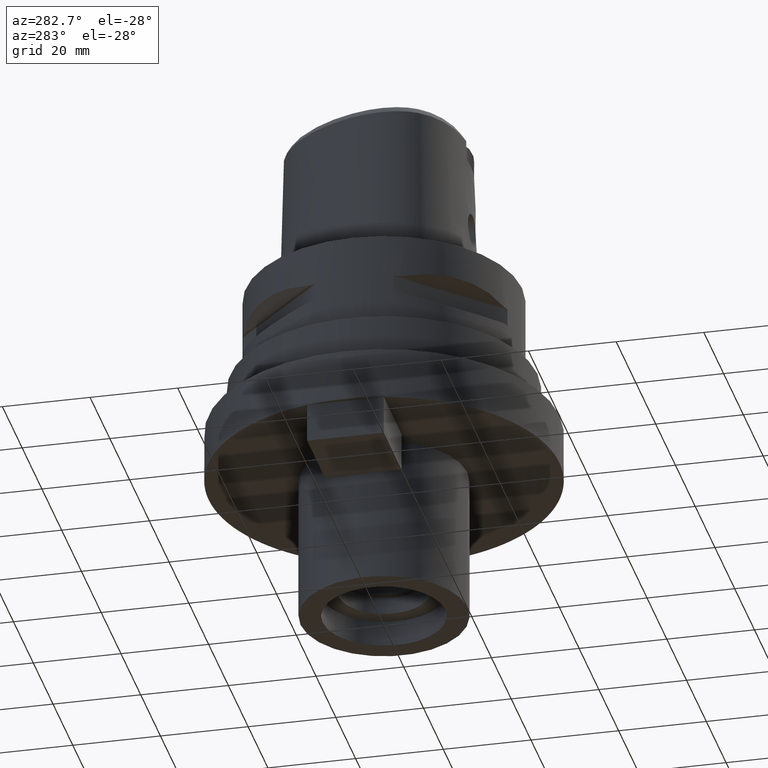
[diagram: clean part render]
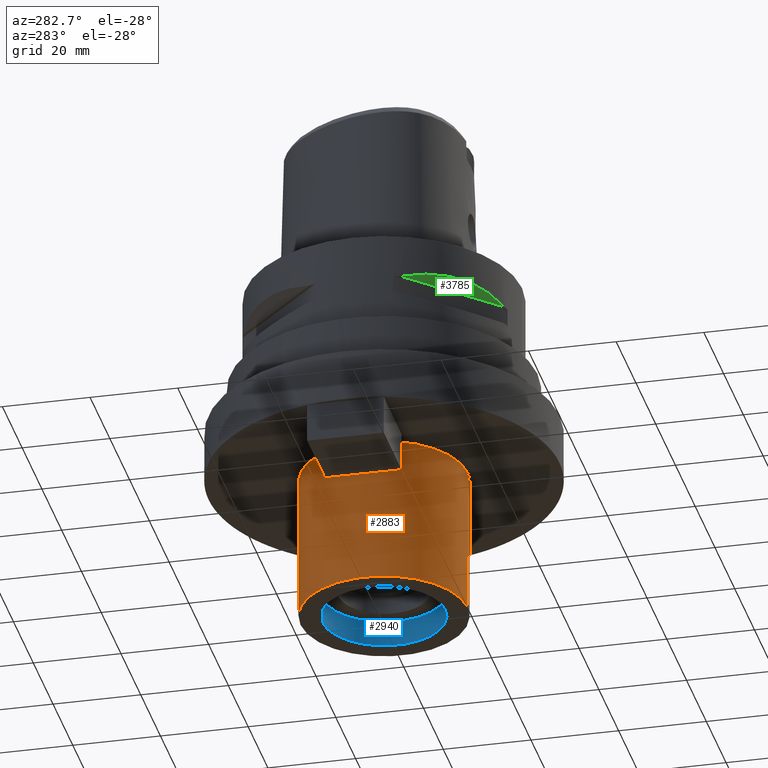
[diagram: same view with three faces highlighted in distinct colors, each labeled with its STEP entity id]
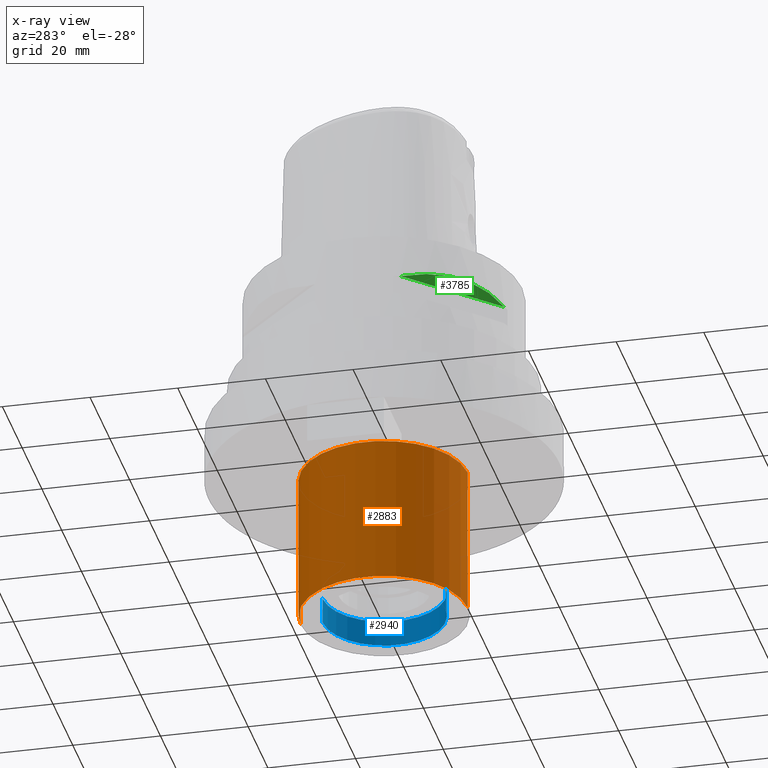
[diagram: x-ray of the same camera — body ghosted, the three highlighted faces saturated]
A machine part, auxiliary view with three faces highlighted in distinct colors.
The next image is the same camera in x-ray (body ghosted, the three faces saturated) — at least one of them is partly hidden behind the body in this view.
Their STEP definitions:

[orange] entity #2883 — the highlighted cylindrical surface (partial cylindrical patch) has radius 19.05 mm, axis along (0, 0, -1).
#642=CARTESIAN_POINT('',(0.E0,0.E0,-4.5E1));
#643=DIRECTION('',(0.E0,0.E0,-1.E0));
#644=DIRECTION('',(0.E0,-1.E0,0.E0));
#645=AXIS2_PLACEMENT_3D('',#642,#643,#644);
#686=DIRECTION('',(0.E0,0.E0,-1.E0));
#687=VECTOR('',#686,3.4E1);
#688=CARTESIAN_POINT('',(0.E0,-1.905E1,-4.5E1));
#689=LINE('',#688,#687);
#693=DIRECTION('',(0.E0,0.E0,-1.E0));
#694=VECTOR('',#693,3.4E1);
#695=CARTESIAN_POINT('',(0.E0,1.905E1,-4.5E1));
#696=LINE('',#695,#694);
#708=CARTESIAN_POINT('',(0.E0,0.E0,-7.9E1));
#709=DIRECTION('',(0.E0,0.E0,1.E0));
#710=DIRECTION('',(0.E0,1.E0,0.E0));
#711=AXIS2_PLACEMENT_3D('',#708,#709,#710);
#1818=CARTESIAN_POINT('',(0.E0,-1.905E1,-4.5E1));
#1819=CARTESIAN_POINT('',(0.E0,1.905E1,-4.5E1));
#1820=VERTEX_POINT('',#1818);
#1821=VERTEX_POINT('',#1819);
#1838=CARTESIAN_POINT('',(0.E0,1.905E1,-7.9E1));
#1839=VERTEX_POINT('',#1838);
#1840=CARTESIAN_POINT('',(0.E0,-1.905E1,-7.9E1));
#1841=VERTEX_POINT('',#1840);
#2869=CARTESIAN_POINT('',(0.E0,0.E0,3.95E0));
#2870=DIRECTION('',(0.E0,0.E0,-1.E0));
#2871=DIRECTION('',(0.E0,-1.E0,0.E0));
#2872=AXIS2_PLACEMENT_3D('',#2869,#2870,#2871);
#2873=CYLINDRICAL_SURFACE('',#2872,1.905E1);
#2875=ORIENTED_EDGE('',*,*,#2874,.F.);
#2876=ORIENTED_EDGE('',*,*,#2842,.F.);
#2878=ORIENTED_EDGE('',*,*,#2877,.T.);
#2880=ORIENTED_EDGE('',*,*,#2879,.F.);
#2881=EDGE_LOOP('',(#2875,#2876,#2878,#2880));
#2882=FACE_OUTER_BOUND('',#2881,.F.);
#646=CIRCLE('',#645,1.905E1);
#712=CIRCLE('',#711,1.905E1);
#2842=EDGE_CURVE('',#1820,#1821,#646,.T.);
#2874=EDGE_CURVE('',#1821,#1839,#696,.T.);
#2877=EDGE_CURVE('',#1820,#1841,#689,.T.);
#2879=EDGE_CURVE('',#1839,#1841,#712,.T.);
#2883=ADVANCED_FACE('',(#2882),#2873,.T.);

[blue] entity #2940 — the highlighted cylindrical surface (partial cylindrical patch) has radius 14 mm, axis along (0, 0, -1).
#724=CARTESIAN_POINT('',(0.E0,0.E0,-7.9E1));
#725=DIRECTION('',(0.E0,0.E0,-1.E0));
#726=DIRECTION('',(0.E0,1.E0,0.E0));
#727=AXIS2_PLACEMENT_3D('',#724,#725,#726);
#732=DIRECTION('',(0.E0,0.E0,1.E0));
#733=VECTOR('',#732,6.E0);
#734=CARTESIAN_POINT('',(0.E0,-1.4E1,-7.9E1));
#735=LINE('',#734,#733);
#739=DIRECTION('',(0.E0,0.E0,1.E0));
#740=VECTOR('',#739,6.E0);
#741=CARTESIAN_POINT('',(0.E0,1.4E1,-7.9E1));
#742=LINE('',#741,#740);
#746=CARTESIAN_POINT('',(0.E0,0.E0,-7.3E1));
#747=DIRECTION('',(0.E0,0.E0,1.E0));
#748=DIRECTION('',(0.E0,-1.E0,0.E0));
#749=AXIS2_PLACEMENT_3D('',#746,#747,#748);
#1842=CARTESIAN_POINT('',(0.E0,-1.4E1,-7.9E1));
#1843=CARTESIAN_POINT('',(0.E0,1.4E1,-7.9E1));
#1844=VERTEX_POINT('',#1842);
#1845=VERTEX_POINT('',#1843);
#1846=CARTESIAN_POINT('',(0.E0,1.4E1,-7.3E1));
#1847=VERTEX_POINT('',#1846);
#1848=CARTESIAN_POINT('',(0.E0,-1.4E1,-7.3E1));
#1849=VERTEX_POINT('',#1848);
#2928=CARTESIAN_POINT('',(0.E0,0.E0,3.95E0));
#2929=DIRECTION('',(0.E0,0.E0,-1.E0));
#2930=DIRECTION('',(0.E0,-1.E0,0.E0));
#2931=AXIS2_PLACEMENT_3D('',#2928,#2929,#2930);
#2932=CYLINDRICAL_SURFACE('',#2931,1.4E1);
#2933=ORIENTED_EDGE('',*,*,#2918,.T.);
#2935=ORIENTED_EDGE('',*,*,#2934,.F.);
#2936=ORIENTED_EDGE('',*,*,#2921,.F.);
#2937=ORIENTED_EDGE('',*,*,#2908,.F.);
#2938=EDGE_LOOP('',(#2933,#2935,#2936,#2937));
#2939=FACE_OUTER_BOUND('',#2938,.F.);
#728=CIRCLE('',#727,1.4E1);
#750=CIRCLE('',#749,1.4E1);
#2908=EDGE_CURVE('',#1845,#1844,#728,.T.);
#2918=EDGE_CURVE('',#1845,#1847,#742,.T.);
#2921=EDGE_CURVE('',#1844,#1849,#735,.T.);
#2934=EDGE_CURVE('',#1849,#1847,#750,.T.);
#2940=ADVANCED_FACE('',(#2939),#2932,.F.);

[green] entity #3785 — the highlighted planar face has unit normal (0.3536, 0.3536, 0.866).
#1641=CARTESIAN_POINT('',(-2.971690375018E1,-1.044775724750E1,
-9.949999999999E0));
#1642=CARTESIAN_POINT('',(-2.888151197365E1,-1.282388988809E1,
-9.320995176198E0));
#1643=CARTESIAN_POINT('',(-2.674739463903E1,-1.711282138769E1,
-8.441295977074E0));
#1644=CARTESIAN_POINT('',(-2.244574140438E1,-2.244574140438E1,
-8.020283076294E0));
#1645=CARTESIAN_POINT('',(-1.711282138769E1,-2.674739463903E1,
-8.441295977074E0));
#1646=CARTESIAN_POINT('',(-1.282388988809E1,-2.888151197365E1,
-9.320995176198E0));
#1647=CARTESIAN_POINT('',(-1.044775724750E1,-2.971690375018E1,
-9.949999999999E0));
#1668=DIRECTION('',(7.071067811865E-1,-7.071067811865E-1,0.E0));
#1669=VECTOR('',#1668,2.725068831944E1);
#1670=CARTESIAN_POINT('',(-2.971690375018E1,-1.044775724750E1,
-9.949999999999E0));
#1671=LINE('',#1670,#1669);
#1759=VERTEX_POINT('',#1641);
#1760=VERTEX_POINT('',#1647);
#3775=CARTESIAN_POINT('',(-8.838834764832E0,-3.712310601229E1,
-7.583270440699E0));
#3776=DIRECTION('',(3.535533905933E-1,3.535533905933E-1,8.660254037844E-1));
#3777=DIRECTION('',(6.123724356958E-1,6.123724356958E-1,-5.E-1));
#3778=AXIS2_PLACEMENT_3D('',#3775,#3776,#3777);
#3779=PLANE('',#3778);
#3780=ORIENTED_EDGE('',*,*,#2649,.T.);
#3782=ORIENTED_EDGE('',*,*,#3781,.F.);
#3783=EDGE_LOOP('',(#3780,#3782));
#3784=FACE_OUTER_BOUND('',#3783,.F.);
#1648=B_SPLINE_CURVE_WITH_KNOTS('',3,(#1641,#1642,#1643,#1644,#1645,#1646,
#1647),.UNSPECIFIED.,.F.,.F.,(4,1,1,1,4),(0.E0,2.5E-1,5.E-1,7.5E-1,1.E0),
.UNSPECIFIED.);
#2649=EDGE_CURVE('',#1759,#1760,#1648,.T.);
#3781=EDGE_CURVE('',#1759,#1760,#1671,.T.);
#3785=ADVANCED_FACE('',(#3784),#3779,.F.);